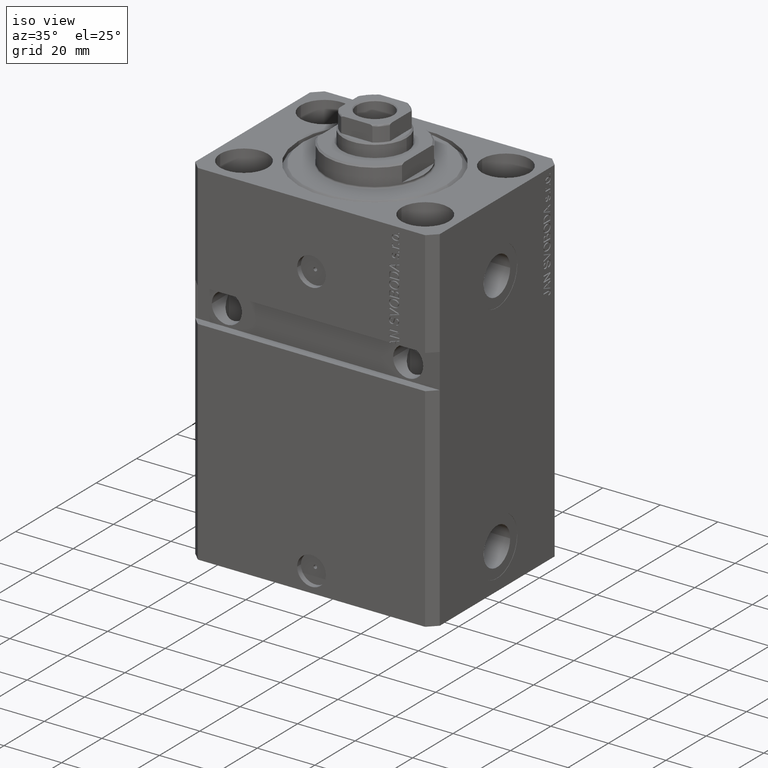
[diagram: clean part render]
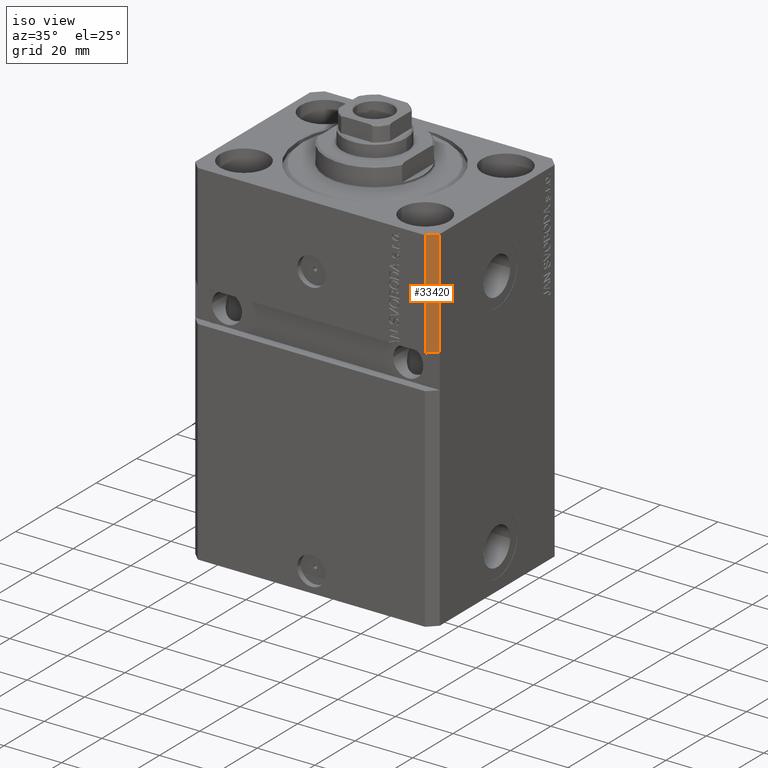
[diagram: same view with one face highlighted and labeled with its STEP entity id]
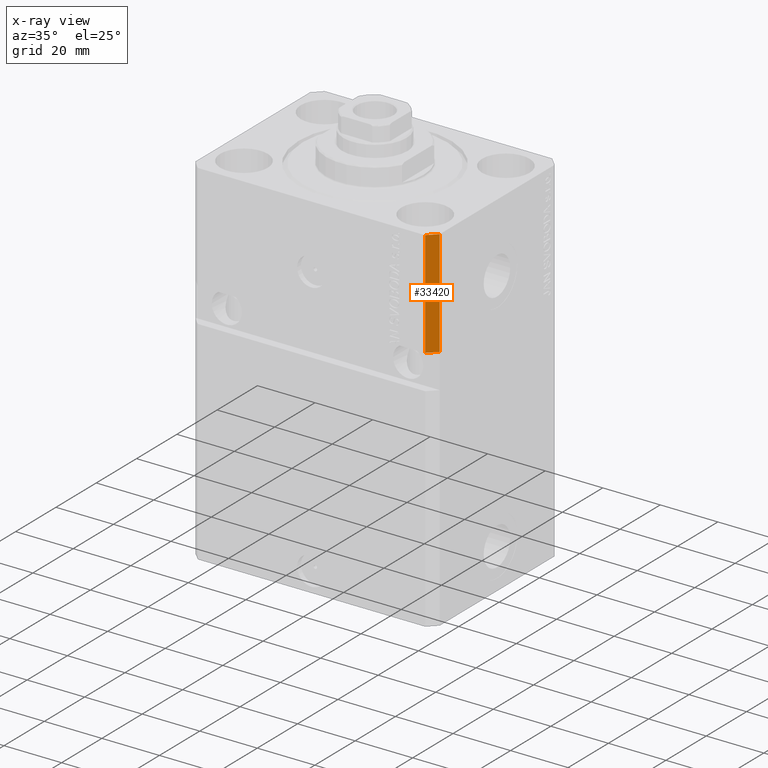
[diagram: x-ray of the same camera — body ghosted, the highlighted face saturated]
A machine part, iso view. The second image highlights one B-rep face of the part: STEP entity #33420.
The next image is the same camera in x-ray: the body ghosted, the highlighted face saturated — about 0% of this face is hidden behind the body in this view.
In plain terms, the highlighted planar face has unit normal (0.7071, -0.7071, 0).
Its self-contained STEP definition (entity closure, byte-faithful):
#32 = CARTESIAN_POINT ( 'NONE',  ( 39.50000000000000711, -31.50000000000000000, -123.0000000000000000 ) ) ;
#910 = EDGE_LOOP ( 'NONE', ( #24393, #18564, #7371, #41201 ) ) ;
#1120 = VERTEX_POINT ( 'NONE', #32557 ) ;
#3111 = CARTESIAN_POINT ( 'NONE',  ( 39.50000000000000000, -31.50000000000000711, -37.00000000000000711 ) ) ;
#5391 = FACE_OUTER_BOUND ( 'NONE', #910, .T. ) ;
#6371 = CARTESIAN_POINT ( 'NONE',  ( 39.50000000000000711, -31.50000000000000000, -123.0000000000000000 ) ) ;
#7371 = ORIENTED_EDGE ( 'NONE', *, *, #10172, .F. ) ;
#8625 = LINE ( 'NONE', #23563, #20868 ) ;
#8874 = DIRECTION ( 'NONE',  ( 0.7071067811865483499, 0.7071067811865466846, 0.000000000000000000 ) ) ;
#9311 = DIRECTION ( 'NONE',  ( 0.7071067811865483499, 0.7071067811865467956, 0.000000000000000000 ) ) ;
#10172 = EDGE_CURVE ( 'NONE', #39613, #1120, #8625, .T. ) ;
#11083 = VECTOR ( 'NONE', #27947, 1000.000000000000000 ) ;
#12843 = VERTEX_POINT ( 'NONE', #31529 ) ;
#13767 = VERTEX_POINT ( 'NONE', #29304 ) ;
#14062 = AXIS2_PLACEMENT_3D ( 'NONE', #6371, #35219, #9311 ) ;
#14380 = LINE ( 'NONE', #3111, #32853 ) ;
#17788 = EDGE_CURVE ( 'NONE', #12843, #13767, #14380, .T. ) ;
#18564 = ORIENTED_EDGE ( 'NONE', *, *, #19480, .T. ) ;
#19480 = EDGE_CURVE ( 'NONE', #12843, #1120, #19649, .T. ) ;
#19649 = LINE ( 'NONE', #46306, #11083 ) ;
#20127 = CARTESIAN_POINT ( 'NONE',  ( 39.50000000000000711, -31.50000000000000000, 0.000000000000000000 ) ) ;
#20328 = PLANE ( 'NONE',  #14062 ) ;
#20425 = EDGE_CURVE ( 'NONE', #13767, #39613, #44542, .T. ) ;
#20868 = VECTOR ( 'NONE', #8874, 1000.000000000000000 ) ;
#23563 = CARTESIAN_POINT ( 'NONE',  ( 39.50000000000000711, -31.50000000000000000, 0.000000000000000000 ) ) ;
#24393 = ORIENTED_EDGE ( 'NONE', *, *, #17788, .F. ) ;
#27947 = DIRECTION ( 'NONE',  ( 0.000000000000000000, 0.000000000000000000, 1.000000000000000000 ) ) ;
#29304 = CARTESIAN_POINT ( 'NONE',  ( 39.50000000000000711, -31.49999999999999289, -37.00000000000000000 ) ) ;
#29508 = DIRECTION ( 'NONE',  ( -0.7071067811865483499, -0.7071067811865467956, -5.772398745160944892E-17 ) ) ;
#31529 = CARTESIAN_POINT ( 'NONE',  ( 42.50000000000001421, -28.49999999999999289, -37.00000000000000000 ) ) ;
#32557 = CARTESIAN_POINT ( 'NONE',  ( 42.50000000000000711, -28.50000000000000355, 0.000000000000000000 ) ) ;
#32853 = VECTOR ( 'NONE', #29508, 1000.000000000000000 ) ;
#33420 = ADVANCED_FACE ( 'NONE', ( #5391 ), #20328, .T. ) ;
#35219 = DIRECTION ( 'NONE',  ( 0.7071067811865467956, -0.7071067811865483499, 0.000000000000000000 ) ) ;
#37705 = DIRECTION ( 'NONE',  ( 0.000000000000000000, 0.000000000000000000, 1.000000000000000000 ) ) ;
#38452 = VECTOR ( 'NONE', #37705, 1000.000000000000000 ) ;
#39613 = VERTEX_POINT ( 'NONE', #20127 ) ;
#41201 = ORIENTED_EDGE ( 'NONE', *, *, #20425, .F. ) ;
#44542 = LINE ( 'NONE', #32, #38452 ) ;
#46306 = CARTESIAN_POINT ( 'NONE',  ( 42.50000000000000711, -28.50000000000000355, -123.0000000000000000 ) ) ;